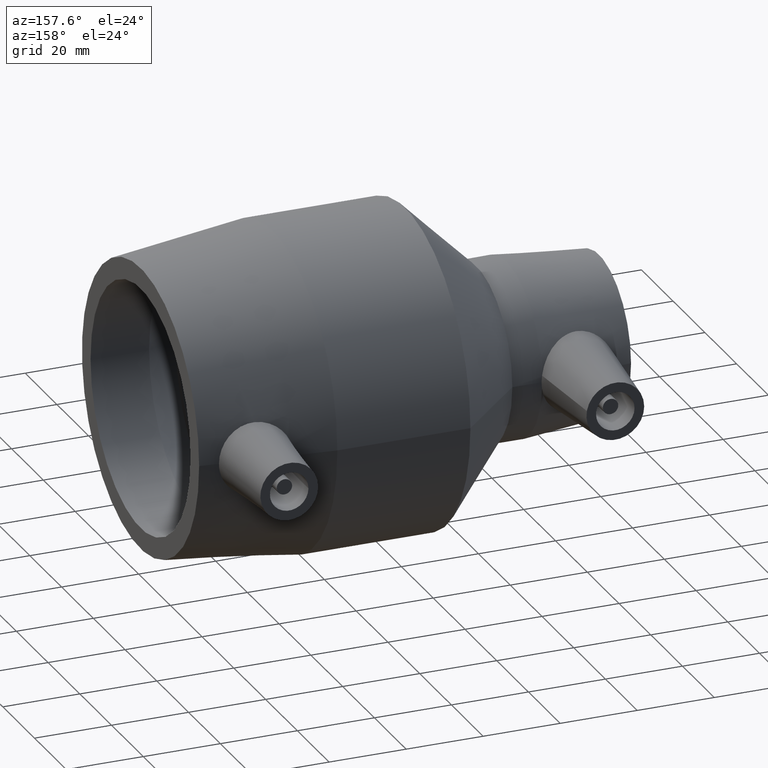
[diagram: clean part render]
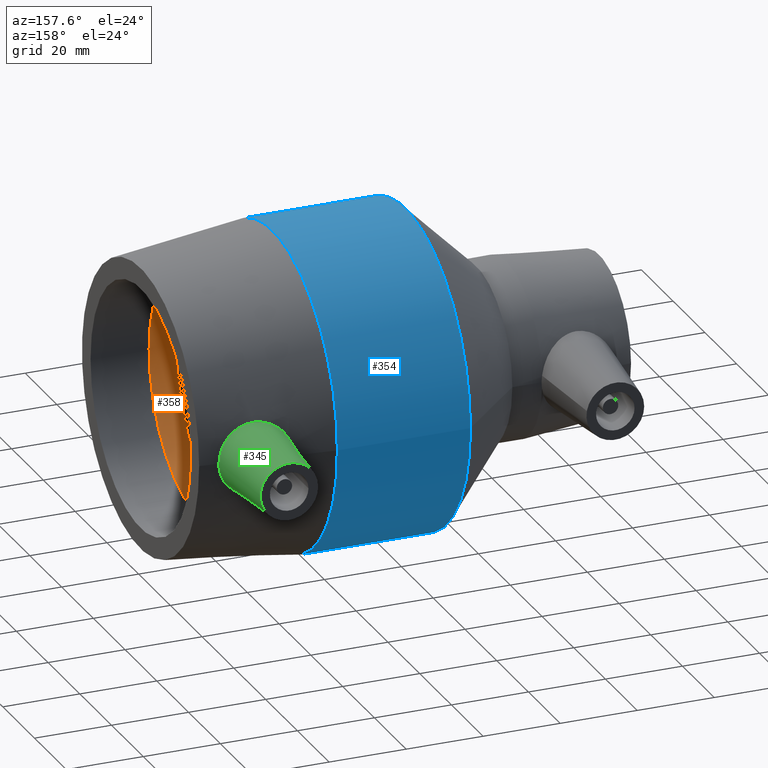
[diagram: same view with three faces highlighted in distinct colors, each labeled with its STEP entity id]
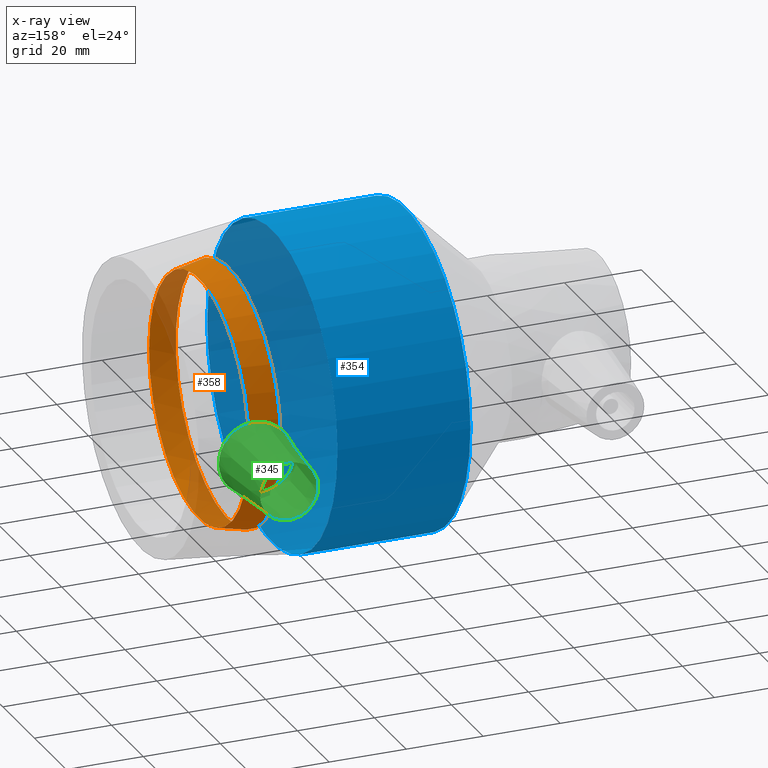
[diagram: x-ray of the same camera — body ghosted, the three highlighted faces saturated]
A machine part, auxiliary view with three faces highlighted in distinct colors.
The next image is the same camera in x-ray (body ghosted, the three faces saturated) — at least one of them is partly hidden behind the body in this view.
Their STEP definitions:

[orange] entity #358 — the highlighted conical surface has half-angle 12 deg.
#24=CONICAL_SURFACE('',#410,32.3077149343461,12.);
#45=FACE_BOUND('',#138,.T.);
#88=FACE_OUTER_BOUND('',#137,.T.);
#137=EDGE_LOOP('',(#299));
#138=EDGE_LOOP('',(#300));
#180=CIRCLE('',#409,31.5);
#181=CIRCLE('',#411,33.1154298686921);
#212=VERTEX_POINT('',#693);
#213=VERTEX_POINT('',#696);
#246=EDGE_CURVE('',#212,#212,#180,.T.);
#247=EDGE_CURVE('',#213,#213,#181,.T.);
#299=ORIENTED_EDGE('',*,*,#247,.F.);
#300=ORIENTED_EDGE('',*,*,#246,.T.);
#358=ADVANCED_FACE('',(#88,#45),#24,.F.);
#409=AXIS2_PLACEMENT_3D('',#694,#509,#510);
#410=AXIS2_PLACEMENT_3D('',#695,#511,#512);
#411=AXIS2_PLACEMENT_3D('',#697,#513,#514);
#509=DIRECTION('center_axis',(1.,1.83697019872103E-16,0.));
#510=DIRECTION('ref_axis',(0.,0.,-1.));
#511=DIRECTION('center_axis',(-1.,-1.83697019872103E-16,0.));
#512=DIRECTION('ref_axis',(-2.09206917912125E-16,1.,0.));
#513=DIRECTION('center_axis',(1.,1.83697019872103E-16,0.));
#514=DIRECTION('ref_axis',(0.,0.,-1.));
#693=CARTESIAN_POINT('',(44.3,31.5,0.));
#694=CARTESIAN_POINT('Origin',(44.3,1.90677506627243E-14,0.));
#695=CARTESIAN_POINT('Origin',(40.5,1.83697019872103E-14,0.));
#696=CARTESIAN_POINT('',(36.7,33.1154298686922,0.));
#697=CARTESIAN_POINT('Origin',(36.7,1.76716533116963E-14,0.));

[blue] entity #354 — the highlighted cylindrical surface (bore or boss wall) has radius 41 mm, axis along (1, 0, 0).
#40=FACE_BOUND('',#129,.T.);
#63=CYLINDRICAL_SURFACE('',#402,41.);
#84=FACE_OUTER_BOUND('',#128,.T.);
#128=EDGE_LOOP('',(#290));
#129=EDGE_LOOP('',(#291));
#176=CIRCLE('',#401,41.);
#177=CIRCLE('',#403,41.);
#208=VERTEX_POINT('',#681);
#209=VERTEX_POINT('',#684);
#242=EDGE_CURVE('',#208,#208,#176,.T.);
#243=EDGE_CURVE('',#209,#209,#177,.T.);
#290=ORIENTED_EDGE('',*,*,#243,.F.);
#291=ORIENTED_EDGE('',*,*,#242,.T.);
#354=ADVANCED_FACE('',(#84,#40),#63,.T.);
#401=AXIS2_PLACEMENT_3D('',#682,#493,#494);
#402=AXIS2_PLACEMENT_3D('',#683,#495,#496);
#403=AXIS2_PLACEMENT_3D('',#685,#497,#498);
#493=DIRECTION('center_axis',(1.,1.83697019872103E-16,0.));
#494=DIRECTION('ref_axis',(0.,0.,-1.));
#495=DIRECTION('center_axis',(1.,1.83697019872103E-16,0.));
#496=DIRECTION('ref_axis',(-2.09206917912125E-16,1.,0.));
#497=DIRECTION('center_axis',(1.,1.83697019872103E-16,0.));
#498=DIRECTION('ref_axis',(0.,0.,-1.));
#681=CARTESIAN_POINT('',(-9.25000000000001,41.,0.));
#682=CARTESIAN_POINT('Origin',(-9.25,9.23077524857317E-15,0.));
#683=CARTESIAN_POINT('Origin',(8.02499999999999,1.24041412668638E-14,0.));
#684=CARTESIAN_POINT('',(25.3,41.,0.));
#685=CARTESIAN_POINT('Origin',(25.3,1.55775072851543E-14,0.));

[green] entity #345 — the highlighted conical surface has half-angle 5 deg.
#15=B_SPLINE_CURVE_WITH_KNOTS('',3,(#582,#583,#584,#585,#586,#587,#588,
#589,#590,#591,#592,#593,#594,#595,#596,#597,#598,#599,#600,#601,#602,#603,
#604,#605,#606,#607,#608,#609,#610,#611,#612,#613,#614,#615),
 .UNSPECIFIED.,.T.,.F.,(4,2,2,2,2,2,2,2,2,2,2,2,2,2,2,2,4),(0.,0.344344122566207,
0.688688245132414,1.03516444235368,1.38164063957495,1.72811683679622,2.07459303401749,
2.4189371565837,2.76328127914991,3.13062849513316,3.49797571111642,3.857611325417,
4.21724693971759,4.57688255401817,4.93651816831875,5.30386538430201,5.67121260028527),
 .UNSPECIFIED.);
#19=CONICAL_SURFACE('',#385,7.5,5.);
#32=FACE_BOUND('',#112,.T.);
#75=FACE_OUTER_BOUND('',#111,.T.);
#111=EDGE_LOOP('',(#269));
#112=EDGE_LOOP('',(#270));
#168=CIRCLE('',#384,7.5);
#198=VERTEX_POINT('',#578);
#199=VERTEX_POINT('',#581);
#230=EDGE_CURVE('',#198,#198,#168,.T.);
#231=EDGE_CURVE('',#199,#199,#15,.T.);
#269=ORIENTED_EDGE('',*,*,#230,.T.);
#270=ORIENTED_EDGE('',*,*,#231,.F.);
#345=ADVANCED_FACE('',(#75,#32),#19,.T.);
#384=AXIS2_PLACEMENT_3D('',#579,#459,#460);
#385=AXIS2_PLACEMENT_3D('',#580,#461,#462);
#459=DIRECTION('center_axis',(0.,-1.,0.));
#460=DIRECTION('ref_axis',(1.,0.,0.));
#461=DIRECTION('center_axis',(0.,-1.,0.));
#462=DIRECTION('ref_axis',(1.,0.,0.));
#578=CARTESIAN_POINT('',(37.72,59.,9.18485099360515E-16));
#579=CARTESIAN_POINT('Origin',(45.22,59.,0.));
#580=CARTESIAN_POINT('Origin',(45.22,59.,0.));
#581=CARTESIAN_POINT('',(45.589104814436,37.4092215909211,-9.38169029055444));
#582=CARTESIAN_POINT('Ctrl Pts',(45.589104814436,37.4092215909211,-9.38169029055444));
#583=CARTESIAN_POINT('Ctrl Pts',(46.7287582541534,37.2767002846761,-9.34845586868686));
#584=CARTESIAN_POINT('Ctrl Pts',(47.9431254974786,37.194509078744,-9.08699148278778));
#585=CARTESIAN_POINT('Ctrl Pts',(50.1690110046823,37.1493334326154,-8.09756112189558));
#586=CARTESIAN_POINT('Ctrl Pts',(51.180492909436,37.1829955260698,-7.36966930765445));
#587=CARTESIAN_POINT('Ctrl Pts',(52.7750082859773,37.2803716581146,-5.71116868463309));
#588=CARTESIAN_POINT('Ctrl Pts',(53.4649391651257,37.3503535786096,-4.66648492120333));
#589=CARTESIAN_POINT('Ctrl Pts',(54.3785078223631,37.4551896820506,-2.38842995182885));
#590=CARTESIAN_POINT('Ctrl Pts',(54.6021285950428,37.4871717181381,-1.15492065740423));
#591=CARTESIAN_POINT('Ctrl Pts',(54.6021285950428,37.4871717181381,1.15492065740423));
#592=CARTESIAN_POINT('Ctrl Pts',(54.3785078223631,37.4551896820506,2.38842995182884));
#593=CARTESIAN_POINT('Ctrl Pts',(53.4649391651257,37.3503535786096,4.66648492120333));
#594=CARTESIAN_POINT('Ctrl Pts',(52.7750082859773,37.2803716581146,5.71116868463309));
#595=CARTESIAN_POINT('Ctrl Pts',(51.180492909436,37.1829955260698,7.36966930765445));
#596=CARTESIAN_POINT('Ctrl Pts',(50.1690110046823,37.1493334326154,8.09756112189558));
#597=CARTESIAN_POINT('Ctrl Pts',(47.9431254974786,37.194509078744,9.08699148278778));
#598=CARTESIAN_POINT('Ctrl Pts',(46.7287582541534,37.2767002846761,9.34845586868686));
#599=CARTESIAN_POINT('Ctrl Pts',(44.3733195263179,37.55059566911,9.41714485924835));
#600=CARTESIAN_POINT('Ctrl Pts',(43.0843450526171,37.7672248336596,9.19906905247652));
#601=CARTESIAN_POINT('Ctrl Pts',(40.7215939932829,38.274878896641,8.25342393871714));
#602=CARTESIAN_POINT('Ctrl Pts',(39.6468508931193,38.5622320612865,7.52630228031444));
#603=CARTESIAN_POINT('Ctrl Pts',(37.9666275557364,39.0549459893803,5.85108600084694));
#604=CARTESIAN_POINT('Ctrl Pts',(37.2412096689238,39.2941581875701,4.79664940802954));
#605=CARTESIAN_POINT('Ctrl Pts',(36.2739787092503,39.6247851042625,2.47079972789851));
#606=CARTESIAN_POINT('Ctrl Pts',(36.0326358037098,39.7133389825962,1.19878538100194));
#607=CARTESIAN_POINT('Ctrl Pts',(36.0326358037098,39.7133389825962,-1.19878538100194));
#608=CARTESIAN_POINT('Ctrl Pts',(36.2739787092503,39.6247851042625,-2.47079972789851));
#609=CARTESIAN_POINT('Ctrl Pts',(37.2412096689238,39.2941581875701,-4.79664940802954));
#610=CARTESIAN_POINT('Ctrl Pts',(37.9666275557364,39.0549459893803,-5.85108600084694));
#611=CARTESIAN_POINT('Ctrl Pts',(39.6468508931193,38.5622320612865,-7.52630228031444));
#612=CARTESIAN_POINT('Ctrl Pts',(40.7215939932828,38.274878896641,-8.25342393871714));
#613=CARTESIAN_POINT('Ctrl Pts',(43.0843450526171,37.7672248336596,-9.19906905247652));
#614=CARTESIAN_POINT('Ctrl Pts',(44.3733195263179,37.55059566911,-9.41714485924835));
#615=CARTESIAN_POINT('Ctrl Pts',(45.589104814436,37.4092215909211,-9.38169029055444));